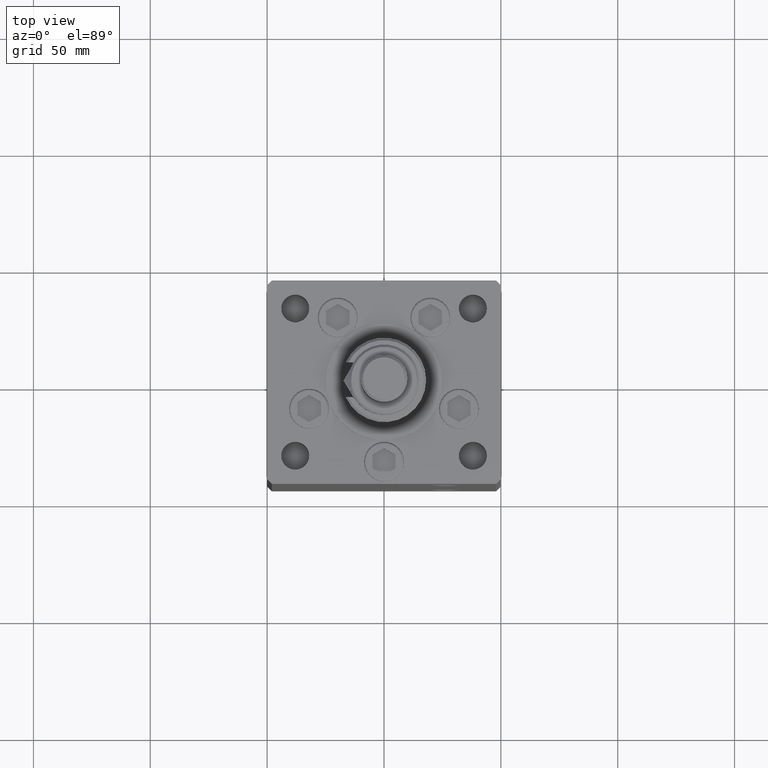
[diagram: clean part render]
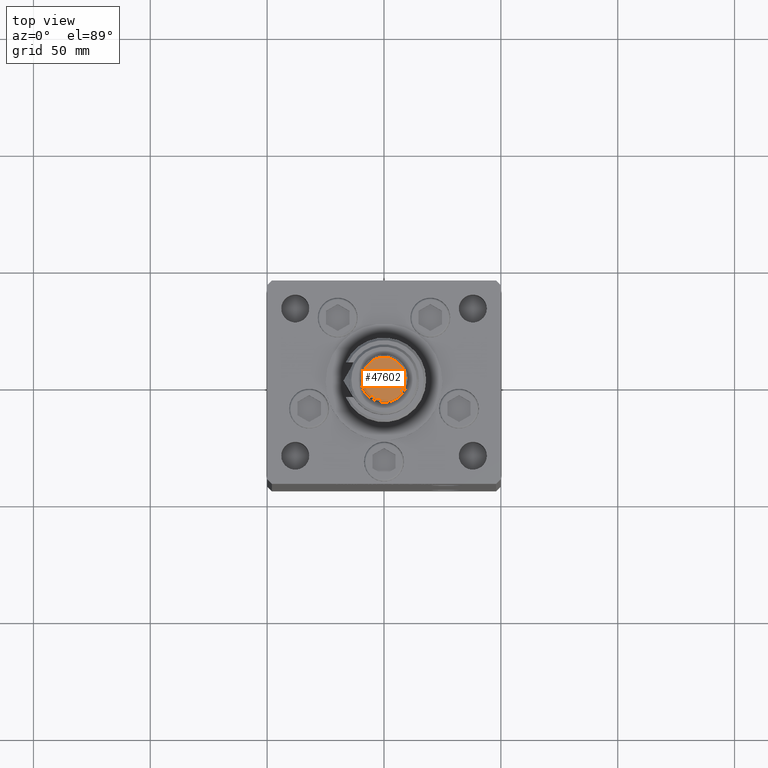
[diagram: same view with one face highlighted and labeled with its STEP entity id]
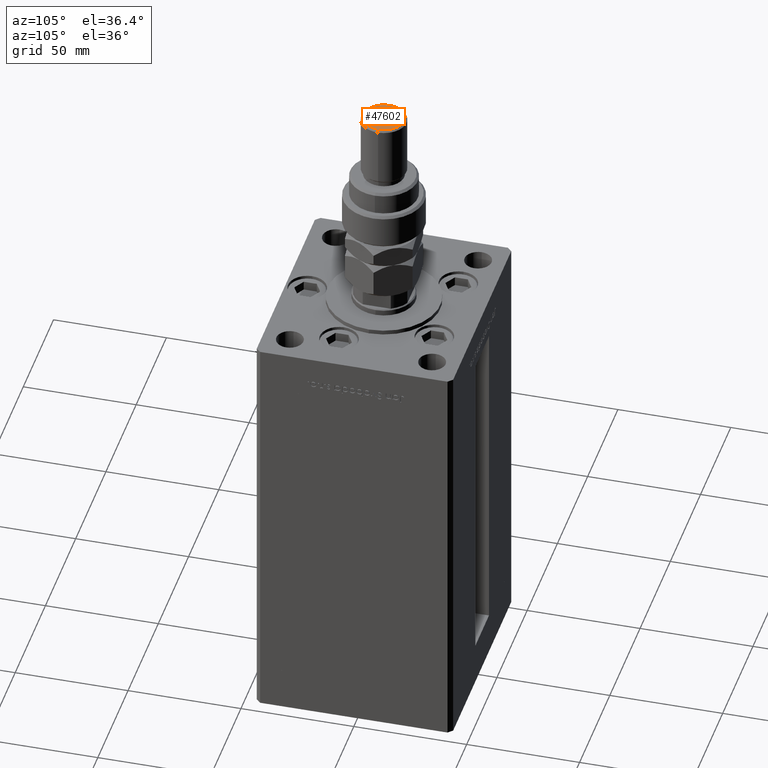
[diagram: same view with one face highlighted and labeled with its STEP entity id]
A machine part, top view. The second image highlights one B-rep face of the part: STEP entity #47602.
A second angle (auxiliary view) of the same face is appended — the face is thin or edge-on in the first view.
In plain terms, the highlighted planar face has unit normal (0, 0, 1).
Its self-contained STEP definition (entity closure, byte-faithful):
#322 = CIRCLE ( 'NONE', #26104, 8.999999999999987566 ) ;
#4318 = DIRECTION ( 'NONE',  ( 1.000000000000000000, 0.000000000000000000, -0.000000000000000000 ) ) ;
#6382 = ORIENTED_EDGE ( 'NONE', *, *, #29000, .T. ) ;
#11491 = CIRCLE ( 'NONE', #35491, 8.999999999999987566 ) ;
#12668 = CARTESIAN_POINT ( 'NONE',  ( 0.000000000000000000, 0.000000000000000000, 56.00000000000000711 ) ) ;
#12785 = EDGE_CURVE ( 'NONE', #36927, #47231, #11491, .T. ) ;
#12944 = DIRECTION ( 'NONE',  ( 0.000000000000000000, 0.000000000000000000, 1.000000000000000000 ) ) ;
#13069 = DIRECTION ( 'NONE',  ( 1.000000000000000000, 0.000000000000000000, 0.000000000000000000 ) ) ;
#16270 = AXIS2_PLACEMENT_3D ( 'NONE', #12668, #12944, #4318 ) ;
#16628 = CARTESIAN_POINT ( 'NONE',  ( 8.999999999999987566, 1.163414459189984894E-15, 56.00000000000000711 ) ) ;
#16828 = FACE_OUTER_BOUND ( 'NONE', #23216, .T. ) ;
#17559 = CARTESIAN_POINT ( 'NONE',  ( -8.999999999999987566, 0.000000000000000000, 56.00000000000000711 ) ) ;
#23216 = EDGE_LOOP ( 'NONE', ( #50763, #6382 ) ) ;
#26104 = AXIS2_PLACEMENT_3D ( 'NONE', #42516, #46424, #13069 ) ;
#29000 = EDGE_CURVE ( 'NONE', #47231, #36927, #322, .T. ) ;
#30379 = DIRECTION ( 'NONE',  ( 0.000000000000000000, 0.000000000000000000, 1.000000000000000000 ) ) ;
#35108 = CARTESIAN_POINT ( 'NONE',  ( 0.000000000000000000, 0.000000000000000000, 56.00000000000000711 ) ) ;
#35491 = AXIS2_PLACEMENT_3D ( 'NONE', #35108, #30379, #48157 ) ;
#36927 = VERTEX_POINT ( 'NONE', #17559 ) ;
#42516 = CARTESIAN_POINT ( 'NONE',  ( 0.000000000000000000, 0.000000000000000000, 56.00000000000000711 ) ) ;
#46424 = DIRECTION ( 'NONE',  ( 0.000000000000000000, 0.000000000000000000, 1.000000000000000000 ) ) ;
#47231 = VERTEX_POINT ( 'NONE', #16628 ) ;
#47602 = ADVANCED_FACE ( 'NONE', ( #16828 ), #50741, .T. ) ;
#48157 = DIRECTION ( 'NONE',  ( 1.000000000000000000, 0.000000000000000000, 0.000000000000000000 ) ) ;
#50741 = PLANE ( 'NONE',  #16270 ) ;
#50763 = ORIENTED_EDGE ( 'NONE', *, *, #12785, .T. ) ;